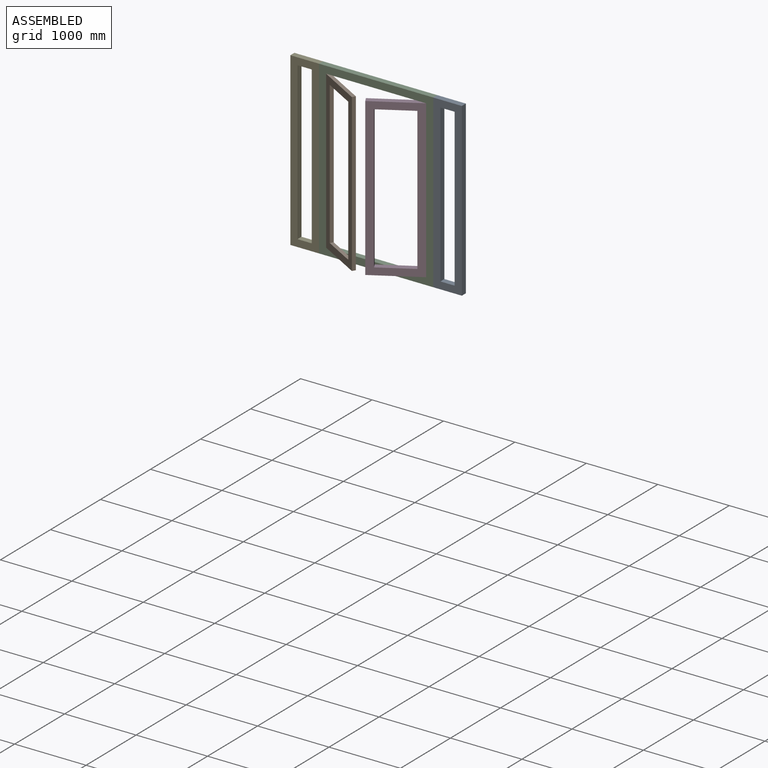
[diagram: assembled view]
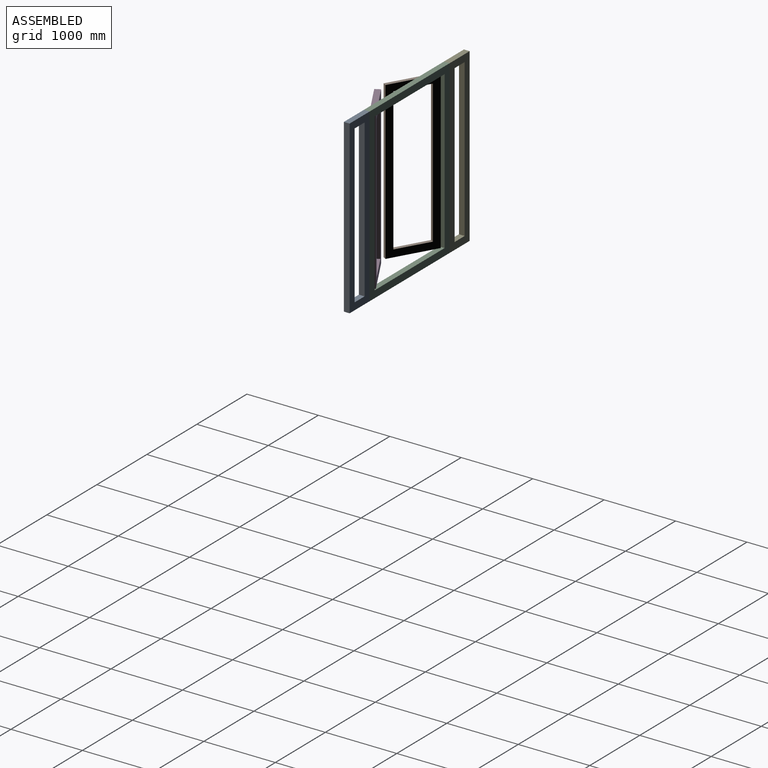
[diagram: assembled view, second angle]
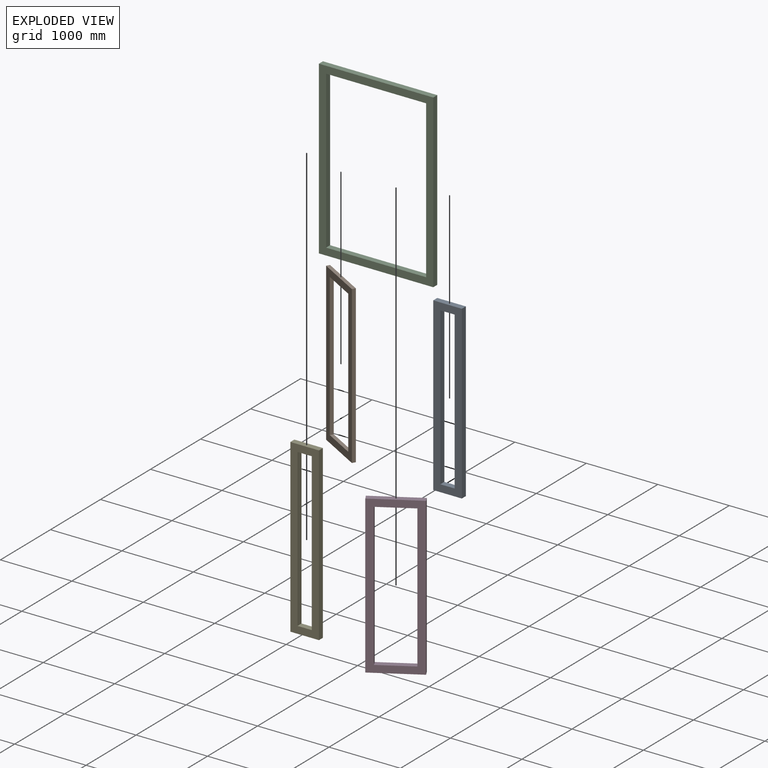
[diagram: exploded view]
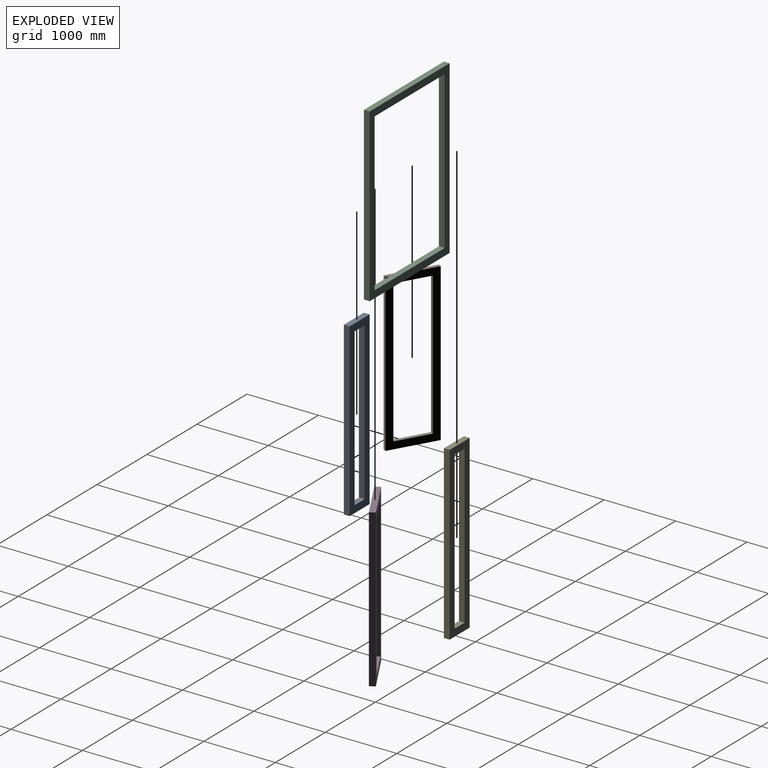
[diagram: exploded view, second angle]
ASSEMBLY  parts=5 mates=4
PART A: 10 faces, bbox 400x80x2400 mm
  f0: plane 400x80mm, normal (0,0,1), area 32000mm2, adj f1,f7,f8,f9
  f1: plane 2400x80mm, normal (-1,0,0), area 192000mm2, adj f0,f2,f8,f9
  f2: plane 400x80mm, normal (0,0,-1), area 32000mm2, adj f1,f7,f8,f9
  f3: plane 2200x80mm, normal (1,0,0), area 176000mm2, adj f4,f6,f8,f9
  f4: plane 200x80mm, normal (0,0,-1), area 16000mm2, adj f3,f5,f8,f9
  f5: plane 2200x80mm, normal (-1,0,0), area 176000mm2, adj f4,f6,f8,f9
  f6: plane 200x80mm, normal (0,0,1), area 16000mm2, adj f3,f5,f8,f9
  f7: plane 2400x80mm, normal (1,0,0), area 192000mm2, adj f0,f2,f8,f9
  f8: plane 2400x400mm, normal (0,-1,0), area 520000mm2, adj f0,f1,f2,f3,f4,f5,f6,f7
  f9: plane 2400x400mm, normal (0,1,0), area 520000mm2, adj f0,f1,f2,f3,f4,f5,f6,f7
PART B: 10 faces, bbox 700x50x2200 mm
  f0: plane 700x50mm, normal (0,0,1), area 35000mm2, adj f1,f7,f8,f9
  f1: plane 2200x50mm, normal (-1,0,0), area 110000mm2, adj f0,f2,f8,f9
  f2: plane 700x50mm, normal (0,0,-1), area 35000mm2, adj f1,f7,f8,f9
  f3: plane 2000x50mm, normal (1,0,0), area 100000mm2, adj f4,f6,f8,f9
  f4: plane 500x50mm, normal (0,0,-1), area 25000mm2, adj f3,f5,f8,f9
  f5: plane 2000x50mm, normal (-1,0,0), area 100000mm2, adj f4,f6,f8,f9
  f6: plane 500x50mm, normal (0,0,1), area 25000mm2, adj f3,f5,f8,f9
  f7: plane 2200x50mm, normal (1,0,0), area 110000mm2, adj f0,f2,f8,f9
  f8: plane 2200x700mm, normal (0,-1,0), area 540000mm2, adj f0,f1,f2,f3,f4,f5,f6,f7
  f9: plane 2200x700mm, normal (0,1,0), area 540000mm2, adj f0,f1,f2,f3,f4,f5,f6,f7
PART C: 10 faces, bbox 1600x80x2400 mm
  f0: plane 1600x80mm, normal (0,0,1), area 128000mm2, adj f1,f7,f8,f9
  f1: plane 2400x80mm, normal (-1,0,0), area 192000mm2, adj f0,f2,f8,f9
  f2: plane 1600x80mm, normal (0,0,-1), area 128000mm2, adj f1,f7,f8,f9
  f3: plane 2200x80mm, normal (1,0,0), area 176000mm2, adj f4,f6,f8,f9
  f4: plane 1400x80mm, normal (0,0,-1), area 112000mm2, adj f3,f5,f8,f9
  f5: plane 2200x80mm, normal (-1,0,0), area 176000mm2, adj f4,f6,f8,f9
  f6: plane 1400x80mm, normal (0,0,1), area 112000mm2, adj f3,f5,f8,f9
  f7: plane 2400x80mm, normal (1,0,0), area 192000mm2, adj f0,f2,f8,f9
  f8: plane 2400x1600mm, normal (0,-1,0), area 760000mm2, adj f0,f1,f2,f3,f4,f5,f6,f7
  f9: plane 2400x1600mm, normal (0,1,0), area 760000mm2, adj f0,f1,f2,f3,f4,f5,f6,f7
PART D: 10 faces, bbox 700x80x2200 mm
  f0: plane 700x80mm, normal (0,0,1), area 56000mm2, adj f1,f7,f8,f9
  f1: plane 2200x80mm, normal (-1,0,0), area 176000mm2, adj f0,f2,f8,f9
  f2: plane 700x80mm, normal (0,0,-1), area 56000mm2, adj f1,f7,f8,f9
  f3: plane 2000x80mm, normal (1,0,0), area 160000mm2, adj f4,f6,f8,f9
  f4: plane 500x80mm, normal (0,0,-1), area 40000mm2, adj f3,f5,f8,f9
  f5: plane 2000x80mm, normal (-1,0,0), area 160000mm2, adj f4,f6,f8,f9
  f6: plane 500x80mm, normal (0,0,1), area 40000mm2, adj f3,f5,f8,f9
  f7: plane 2200x80mm, normal (1,0,0), area 176000mm2, adj f0,f2,f8,f9
  f8: plane 2200x700mm, normal (0,-1,0), area 540000mm2, adj f0,f1,f2,f3,f4,f5,f6,f7
  f9: plane 2200x700mm, normal (0,1,0), area 540000mm2, adj f0,f1,f2,f3,f4,f5,f6,f7
PART E: same geometry as A
PLACE A t=(1914.68,0,399.69)mm
PLACE B rot(axis=(0,0,-1),30deg) t=(332.5,-436.7,5199.69)mm
PLACE C at identity fixed
PLACE D rot(axis=(0,0,1),30deg) t=(1061.28,39.28,5199.69)mm
PLACE E t=(-85.32,0,399.69)mm
MATE revolute C.f6 <-> B.f2  axis (0,0,1) through (-385.32,-80,-700.31)mm
MATE revolute D.f0 <-> C.f4  axis (0,0,1) through (1014.68,-80,1499.69)mm
MATE fastened E.f0 <-> C.f0  axis (0,0,1) through (-485.32,-80,1599.69)mm
MATE fastened A.f2 <-> C.f2  axis (0,0,1) through (1114.68,0,-800.31)mm
